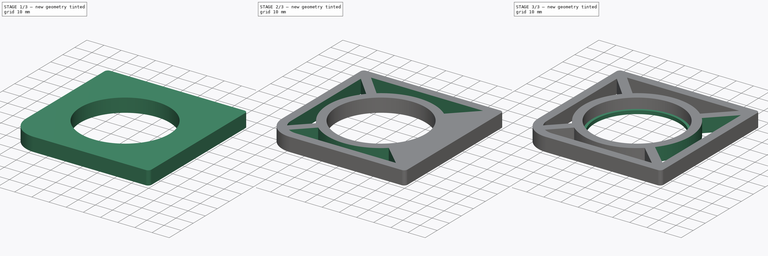
[diagram: build sequence overview — one tinted view per stage of 3, left to right]
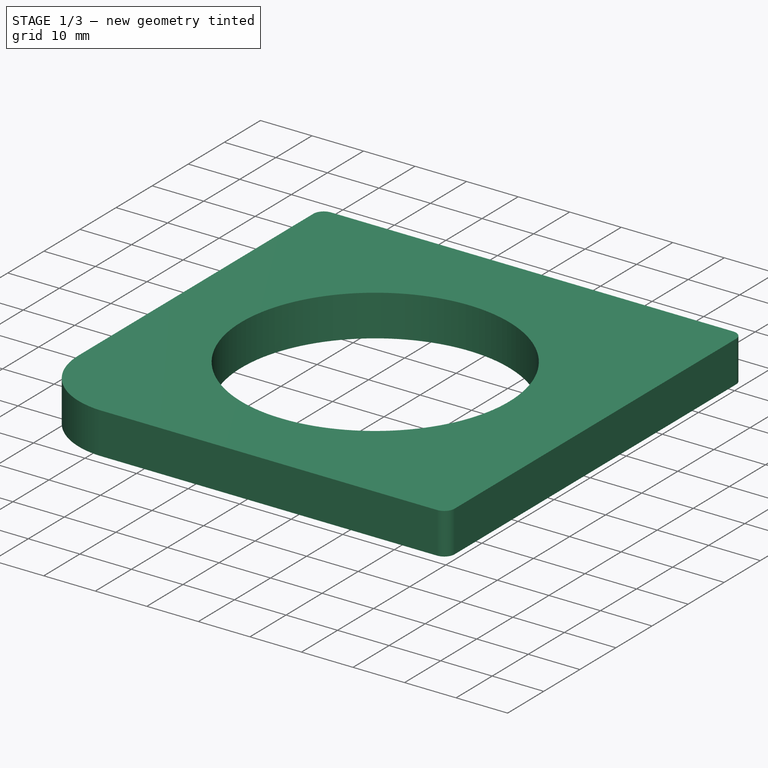
[diagram: stage 1 of 3 — iso view after this stage's code; geometry added in this stage tinted green]
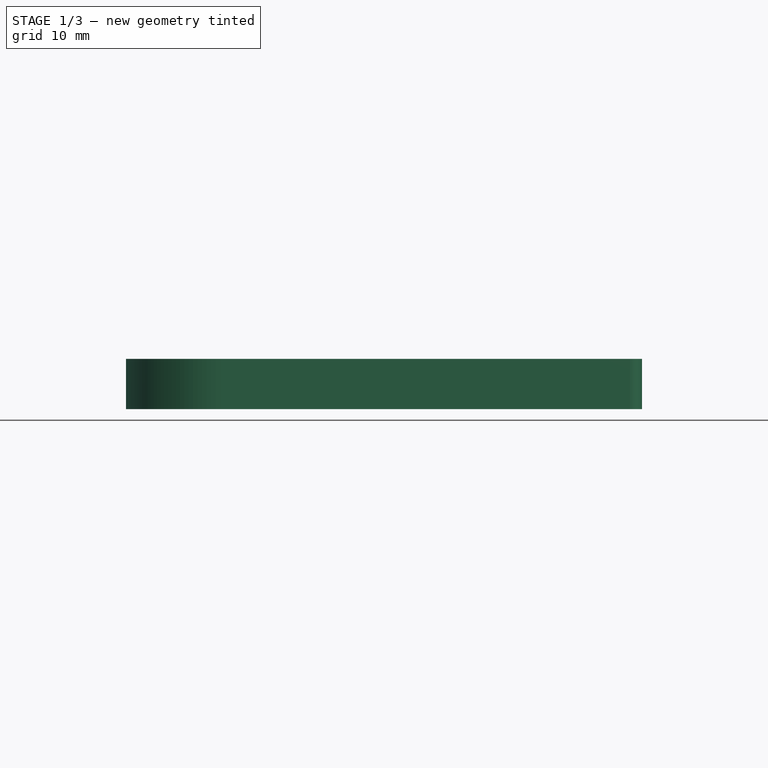
[diagram: stage 1 of 3 — front view after this stage's code; geometry added in this stage tinted green]
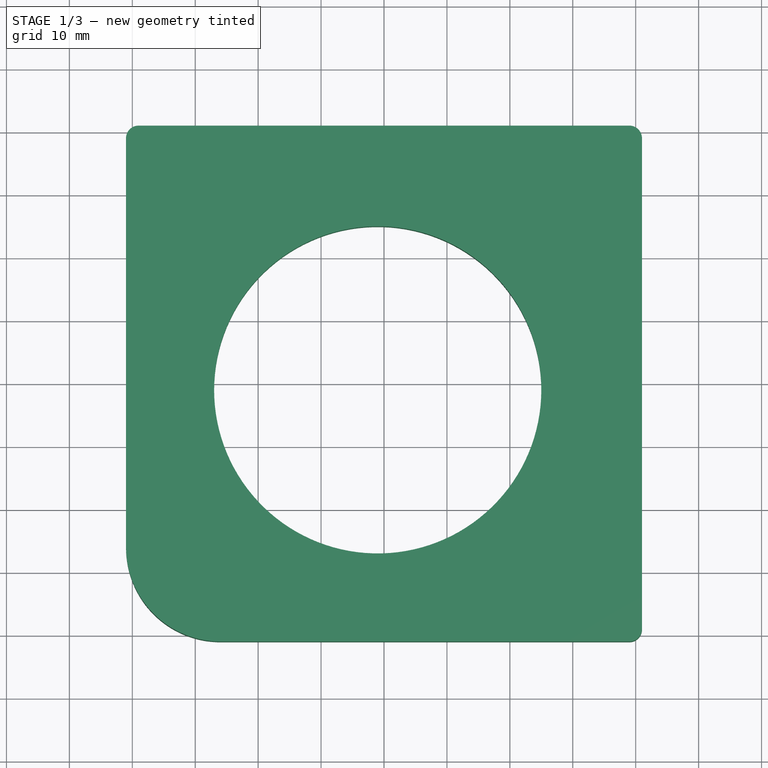
[diagram: stage 1 of 3 — top view after this stage's code; geometry added in this stage tinted green]
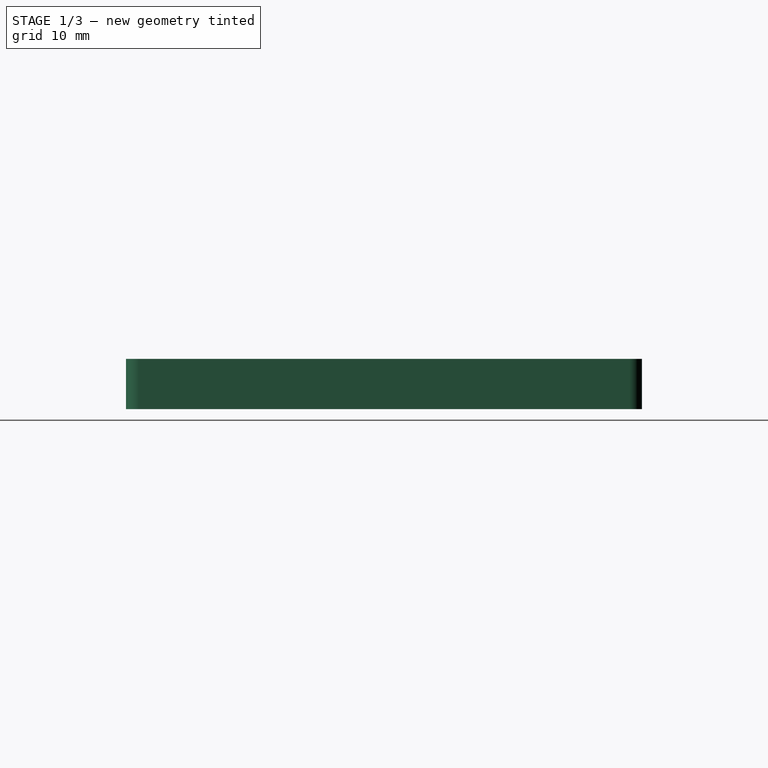
[diagram: stage 1 of 3 — right view after this stage's code; geometry added in this stage tinted green]
FCSTD DOCUMENT  (FreeCAD 1.0R39319 (Git))
Label: samla_bearing_holder
License: All rights reserved
LicenseURL: https://en.wikipedia.org/wiki/All_rights_reserved
objects: Sketcher::SketchObject×7, PartDesign::Pocket×5, PartDesign::Pad×2, Spreadsheet::Sheet×1, PartDesign::Plane×1, PartDesign::Body×1
note: 37 computed .brp shape members not serialized (recipe doc carries the construction recipe); baked Part::Feature solids carry a one-line shape summary decoded from their .brp

FEATURE [Spreadsheet::Sheet] Spreadsheet  label="settings"
  cells = A1='Foot Width; B1(FootWidth)=82; C1='Bearing X; D1(BearingX)=40; E1='Wall thickness; F1(WallThickness)=5; A2='Foot Depth; B2(FootDepth)=82; C2='Bearing Y; D2(BearingY)=40; A3='Foot Fillet; B3(FootFillet)=15; C3='Bearing Diameter; D3(BearingDiameter)=52; C4='Bearing lip size; D4(BearingLipSize)=3; A5='Foot corner fillets; B5(FootCornerFillet)=2; C5='Bearing depth; D5(BearingDepth)=6; A6='Foot Height; B6(FootHeight)=8
FEATURE [Sketcher::SketchObject] Sketch
  ArcFitTolerance = 1e-06
  AttachmentSupport = -> [XY_Plane]
  FullyConstrained = true
  MakeInternals = false
  MapMode = 5
  expr: Constraints[11] = Spreadsheet.FootFillet
  expr: Constraints[24] = Spreadsheet.FootCornerFillet
  expr: Constraints[25] = Spreadsheet.FootCornerFillet
  expr: Constraints[26] = Spreadsheet.FootCornerFillet
  expr: Constraints[5] = Spreadsheet.FootWidth
  expr: Constraints[6] = Spreadsheet.FootDepth
  sketch-geometry (12):
    g0: LineSegment StartX=-41 StartY=39 StartZ=0 EndX=-41 EndY=-26 EndZ=0
    g1: LineSegment StartX=-26 StartY=-41 StartZ=0 EndX=39 EndY=-41 EndZ=0
    g2: LineSegment StartX=41 StartY=-39 StartZ=0 EndX=41 EndY=39 EndZ=0
    g3: LineSegment StartX=39 StartY=41 StartZ=0 EndX=-39 EndY=41 EndZ=0
    g4: ArcOfCircle CenterX=-26 CenterY=-26 CenterZ=0 NormalX=0 NormalY=0 NormalZ=1 AngleXU=0 Radius=15 StartAngle=3.14159 EndAngle=4.71239
    g5: GeomPoint [constr] X=-41 Y=-41 Z=0
    g6: ArcOfCircle CenterX=-39 CenterY=39 CenterZ=0 NormalX=0 NormalY=0 NormalZ=1 AngleXU=0 Radius=2 StartAngle=1.5708 EndAngle=3.14159
    g7: GeomPoint [constr] X=-41 Y=41 Z=0
    g8: ArcOfCircle CenterX=39 CenterY=39 CenterZ=0 NormalX=0 NormalY=0 NormalZ=1 AngleXU=0 Radius=2 StartAngle=1.2e-15 EndAngle=1.5708
    g9: GeomPoint [constr] X=41 Y=41 Z=0
    g10: ArcOfCircle CenterX=39 CenterY=-39 CenterZ=0 NormalX=0 NormalY=0 NormalZ=1 AngleXU=0 Radius=2 StartAngle=4.71239 EndAngle=6.28319
    g11: GeomPoint [constr] X=41 Y=-41 Z=0
  constraints (27):
    c: Vertical(g0)
    c: Vertical(g2)
    c: Horizontal(g1)
    c: Horizontal(g3)
    c: Symmetric(g9,g5,g-1)
    c: DistanceX(g5,g11) = 82
    c: DistanceY(g11,g9) = 82
    c: PointOnObject(g5,g1)
    c: PointOnObject(g5,g0)
    c: Tangent(g1,g4) = -1.5708
    c: Tangent(g0,g4) = -1.5708
    c: DistanceY(g1,g4) = 15
    c: PointOnObject(g7,g3)
    c: PointOnObject(g7,g0)
    c: Tangent(g3,g6) = -1.5708
    c: Tangent(g0,g6) = -1.5708
    c: PointOnObject(g9,g2)
    c: PointOnObject(g9,g3)
    c: Tangent(g2,g8) = -1.5708
    c: Tangent(g3,g8) = -1.5708
    c: PointOnObject(g11,g1)
    c: PointOnObject(g11,g2)
    c: Tangent(g1,g10) = -1.5708
    c: Tangent(g2,g10) = -1.5708
    c: DistanceY(g6,g3) = 2
    c: DistanceY(g8,g3) = 2
    c: DistanceY(g1,g10) = 2
FEATURE [PartDesign::Pad] Pad  label="main body"
  Direction = (0,0,1)
  Length = 8
  Length2 = 10
  Profile = -> Sketch
  ReferenceAxis = -> Sketch [N_Axis]
  Refine = true
  Suppressed = false
  Type = 0
  expr: Length = Spreadsheet.FootHeight
FEATURE [PartDesign::Plane] DatumPlane  label="TopPlane"
  AttachmentOffset = pos=(0,0,8) rot=(0,0,1;0rad)
  AttachmentSupport = -> [XY_Plane]
  Length = 98.4
  MapMode = 2
  Placement = pos=(0,0,8) rot=(0,0,1;0rad)
  ResizeMode = 0
  Width = 98.4
  expr: .AttachmentOffset.Base.z = Spreadsheet.FootHeight
FEATURE [Sketcher::SketchObject] Sketch001
  ArcFitTolerance = 1e-06
  AttachmentSupport = -> [DatumPlane]
  FullyConstrained = true
  MakeInternals = false
  MapMode = 5
  Placement = pos=(0,0,8) rot=(0,0,1;0rad)
  expr: Constraints[10] = Spreadsheet.BearingY
  expr: Constraints[11] = Spreadsheet.FootDepth
  expr: Constraints[12] = Spreadsheet.FootWidth
  expr: Constraints[17] = Spreadsheet.FootFillet
  expr: Constraints[8] = Spreadsheet.BearingDiameter
  expr: Constraints[9] = Spreadsheet.BearingX
  sketch-geometry (7):
    g0: LineSegment [constr] StartX=-41 StartY=41 StartZ=0 EndX=-41 EndY=-26 EndZ=0
    g1: LineSegment [constr] StartX=-26 StartY=-41 StartZ=0 EndX=41 EndY=-41 EndZ=0
    g2: LineSegment [constr] StartX=41 StartY=-41 StartZ=0 EndX=41 EndY=41 EndZ=0
    g3: LineSegment [constr] StartX=41 StartY=41 StartZ=0 EndX=-41 EndY=41 EndZ=0
    g4: Circle CenterX=-1 CenterY=-1 CenterZ=0 NormalX=0 NormalY=0 NormalZ=1 AngleXU=0 Radius=26
    g5: ArcOfCircle [constr] CenterX=-26 CenterY=-26 CenterZ=0 NormalX=0 NormalY=0 NormalZ=1 AngleXU=0 Radius=15 StartAngle=3.14159 EndAngle=4.71239
    g6: GeomPoint [constr] X=-41 Y=-41 Z=0
  constraints (18):
    c: Coincident(g1,g2)
    c: Coincident(g2,g3)
    c: Coincident(g3,g0)
    c: Vertical(g0)
    c: Vertical(g2)
    c: Horizontal(g1)
    c: Horizontal(g3)
    c: Symmetric(g2,g6,g-1)
    c: Diameter(g4) = 52
    c: DistanceX(g6,g4) = 40
    c: DistanceY(g6,g4) = 40
    c: DistanceY(g6,g0) = 82
    c: DistanceX(g6,g1) = 82
    c: PointOnObject(g6,g1)
    c: PointOnObject(g6,g0)
    c: Tangent(g1,g5) = -1.5708
    c: Tangent(g0,g5) = -1.5708
    c: DistanceX(g0,g5) = 15
FEATURE [PartDesign::Pocket] Pocket  label="BearingHole"
  BaseFeature = -> Pad
  Direction = (0,0,-1)
  Length = 5
  Length2 = 5
  Profile = -> Sketch001
  ReferenceAxis = -> Sketch001 [N_Axis]
  Refine = true
  Suppressed = false
  Type = 1
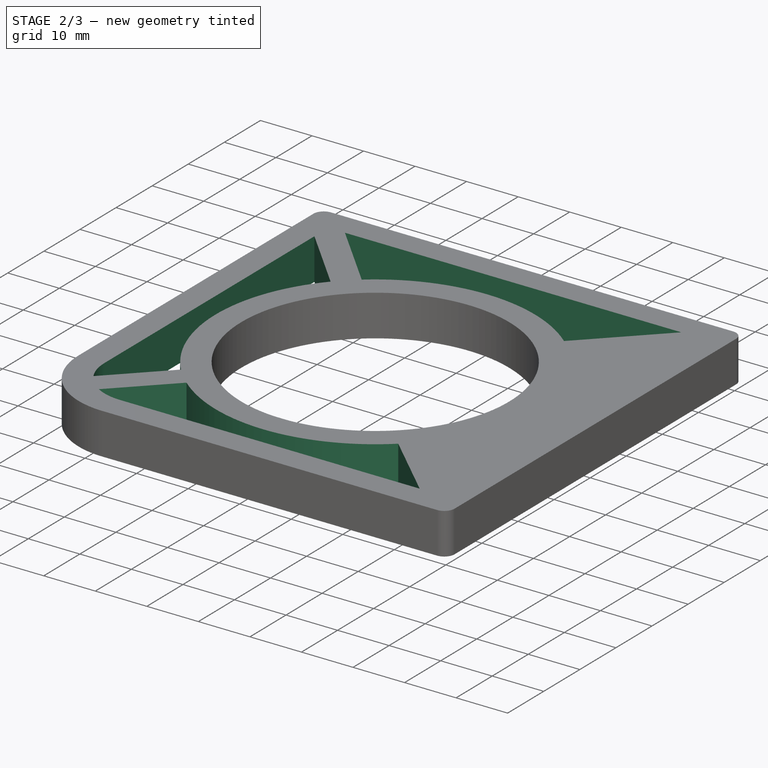
[diagram: stage 2 of 3 — iso view after this stage's code; geometry added in this stage tinted green]
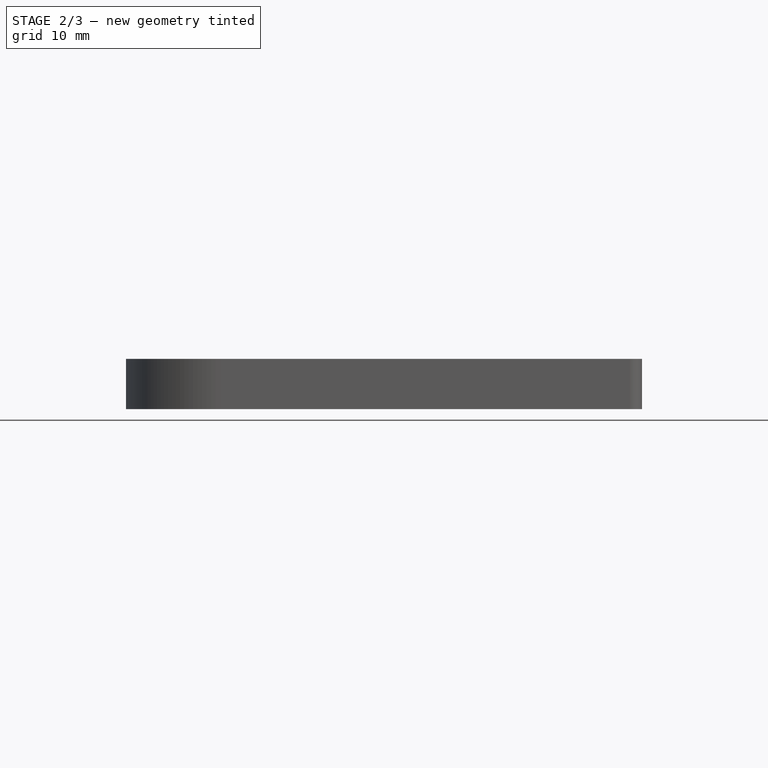
[diagram: stage 2 of 3 — front view after this stage's code; geometry added in this stage tinted green]
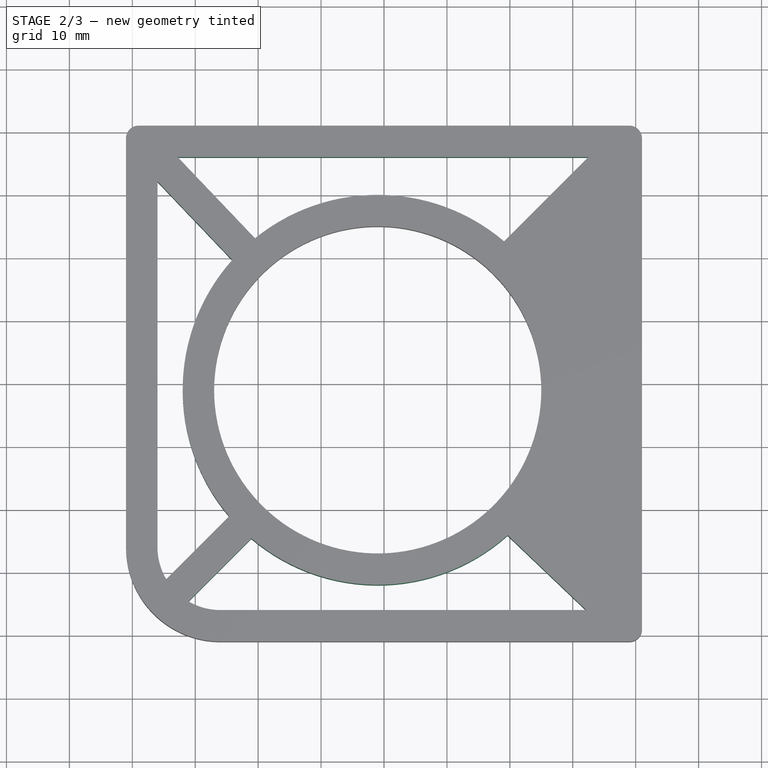
[diagram: stage 2 of 3 — top view after this stage's code; geometry added in this stage tinted green]
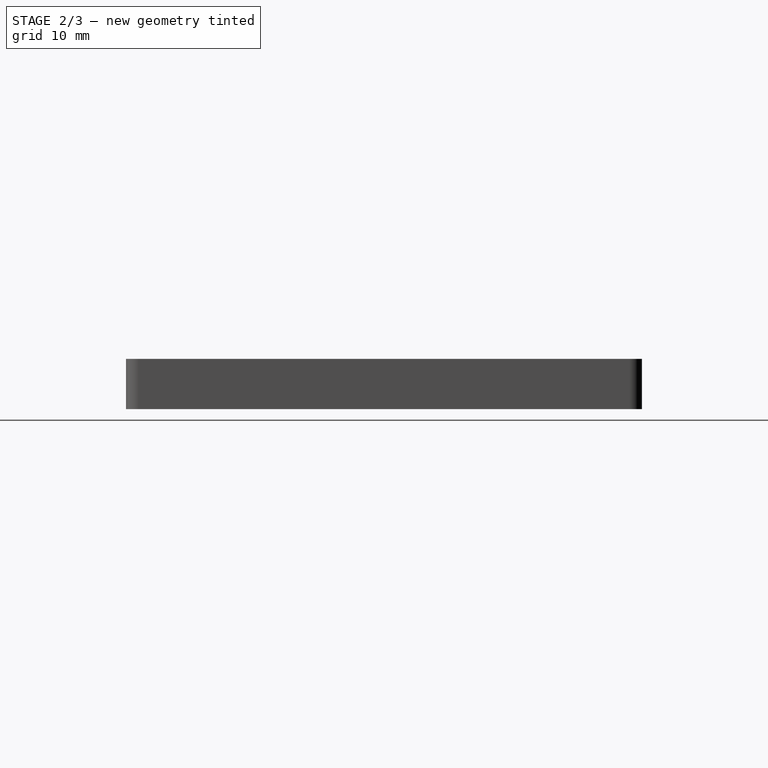
[diagram: stage 2 of 3 — right view after this stage's code; geometry added in this stage tinted green]
FEATURE [Sketcher::SketchObject] Sketch002
  ArcFitTolerance = 1e-06
  AttachmentSupport = -> [DatumPlane]
  ExternalGeometry = -> [Pocket]
  FullyConstrained = true
  MakeInternals = false
  MapMode = 5
  Placement = pos=(0,0,8) rot=(0,0,1;0rad)
  expr: Constraints[2] = Spreadsheet.BearingDiameter + Spreadsheet.WallThickness * 2
  expr: Constraints[44] = Spreadsheet.WallThickness / 2
  expr: Constraints[48] = Spreadsheet.WallThickness / 2
  expr: Constraints[5] = Spreadsheet.WallThickness
  sketch-geometry (18):
    g0: LineSegment [constr] StartX=-1 StartY=-1 StartZ=0 EndX=-41 EndY=-41 EndZ=0
    g1: LineSegment [constr] StartX=-1 StartY=-1 StartZ=0 EndX=41 EndY=-41 EndZ=0
    g2: Circle [constr] CenterX=-1 CenterY=-1 CenterZ=0 NormalX=0 NormalY=0 NormalZ=1 AngleXU=0 Radius=31
    g3: LineSegment [constr] StartX=35.75 StartY=-36 StartZ=0 EndX=-26 EndY=-36 EndZ=0
    g4: LineSegment [constr] StartX=0.810883 StartY=-2.72465 StartZ=0 EndX=-39.1891 EndY=-42.7247 EndZ=0
    g5: ArcOfCircle [constr] CenterX=-26 CenterY=-26 CenterZ=0 NormalX=0 NormalY=0 NormalZ=1 AngleXU=0 Radius=10 StartAngle=3.92699 EndAngle=4.71239
    g6: LineSegment [constr] StartX=-2.76829 StartY=-2.76829 StartZ=0 EndX=39.2317 EndY=-42.7683 EndZ=0
    g7: GeomPoint [constr] X=-21.0811 Y=-24.6167 Z=0
    g8: GeomPoint [constr] X=19.651 Y=-24.12 Z=0
    g9: GeomPoint [constr] X=32.125 Y=-36 Z=0
    g10: GeomPoint [constr] X=-31.0788 Y=-34.6143 Z=0
    g11: LineSegment StartX=-26 StartY=-36 StartZ=0 EndX=32.125 EndY=-36 EndZ=0
    g12: LineSegment StartX=32.125 StartY=-36 StartZ=0 EndX=19.651 EndY=-24.12 EndZ=0
    g13: ArcOfCircle CenterX=-1 CenterY=-1 CenterZ=0 NormalX=0 NormalY=0 NormalZ=1 AngleXU=0 Radius=31 StartAngle=4.00772 EndAngle=5.44144
    g14: LineSegment StartX=-21.0811 StartY=-24.6167 StartZ=0 EndX=-31.0788 EndY=-34.6143 EndZ=0
    g15: ArcOfCircle CenterX=-26 CenterY=-26 CenterZ=0 NormalX=0 NormalY=0 NormalZ=1 AngleXU=0 Radius=10 StartAngle=4.17967 EndAngle=4.71239
    g16: LineSegment [constr] StartX=-22.9203 StartY=-22.9203 StartZ=0 EndX=-21.1525 EndY=-24.6881 EndZ=0
    g17: LineSegment [constr] StartX=19.7241 StartY=-24.1897 StartZ=0 EndX=21.4483 EndY=-22.3793 EndZ=0
  constraints (49):
    c: Coincident(g1,g0)
    c: Coincident(g2,g0)
    c: Diameter(g2) = 62
    c: Vertical(g3,g-4)
    c: Coincident(g0,g-3)
    c: DistanceY(g-4,g3) = 5
    c: PointOnObject(g4,g1)
    c: Parallel(g4,g0)
    c: Equal(g4,g0)
    c: Coincident(g5,g3)
    c: PointOnObject(g5,g0)
    c: Coincident(g5,g-4)
    c: PointOnObject(g6,g0)
    c: Parallel(g6,g1)
    c: Equal(g6,g1)
    c: PointOnObject(g7,g2)
    c: PointOnObject(g7,g4)
    c: PointOnObject(g10,g4)
    c: PointOnObject(g9,g6)
    c: PointOnObject(g9,g3)
    c: PointOnObject(g8,g6)
    c: Coincident(g11,g9)
    c: Coincident(g11,g3)
    c: Coincident(g12,g8)
    c: Horizontal(g3)
    c: Coincident(g12,g9)
    c: Coincident(g13,g8)
    c: Coincident(g13,g7)
    c: Coincident(g13,g0)
    c: Coincident(g14,g7)
    c: Coincident(g14,g10)
    c: Coincident(g15,g5)
    c: Coincident(g15,g3)
    c: Coincident(g15,g10)
    c: Vertical(g-4,g0)
    c: Horizontal(g0,g-4)
    c: PointOnObject(g3,g1)
    c: Horizontal(g1,g-5)
    c: Vertical(g1,g-5)
    c: PointOnObject(g16,g0)
    c: PointOnObject(g16,g4)
    c: PointOnObject(g17,g6)
    c: PointOnObject(g17,g1)
    c: Perpendicular(g4,g16)
    c: Distance(g16,g16) = 2.5
    c: PointOnObject(g16,g2)
    c: PointOnObject(g17,g2)
    c: Perpendicular(g1,g17)
    c: Distance(g17,g17) = 2.5
FEATURE [PartDesign::Pocket] Pocket001  label="BottomHole"
  BaseFeature = -> Pocket
  Direction = (0,0,-1)
  Length = 5
  Length2 = 5
  Profile = -> Sketch002
  ReferenceAxis = -> Sketch002 [N_Axis]
  Refine = true
  Suppressed = false
  Type = 1
FEATURE [Sketcher::SketchObject] Sketch003
  ArcFitTolerance = 1e-06
  AttachmentSupport = -> [DatumPlane]
  ExternalGeometry = -> [Pocket001]
  FullyConstrained = true
  MakeInternals = false
  MapMode = 5
  Placement = pos=(0,0,8) rot=(0,0,1;0rad)
  expr: Constraints[18] = Spreadsheet.WallThickness / 2
  expr: Constraints[19] = Spreadsheet.WallThickness / 2
  expr: Constraints[23] = Spreadsheet.WallThickness
  expr: Constraints[31] = Spreadsheet.BearingDiameter + Spreadsheet.WallThickness * 2
  sketch-geometry (13):
    g0: LineSegment [constr] StartX=-1 StartY=-1 StartZ=0 EndX=-41 EndY=41 EndZ=0
    g1: LineSegment [constr] StartX=-1 StartY=-1 StartZ=0 EndX=-41 EndY=-41 EndZ=0
    g2: LineSegment [constr] StartX=-2.72465 StartY=0.810883 StartZ=0 EndX=-42.7247 EndY=-39.1891 EndZ=0
    g3: LineSegment [constr] StartX=-2.76829 StartY=-2.76829 StartZ=0 EndX=-42.7683 EndY=39.2317 EndZ=0
    g4: LineSegment [constr] StartX=16.931 StartY=-19.8276 StartZ=0 EndX=15.1207 EndY=-21.5517 EndZ=0
    g5: LineSegment [constr] StartX=-21.1525 StartY=-17.617 StartZ=0 EndX=-19.3848 EndY=-19.3848 EndZ=0
    g6: LineSegment [constr] StartX=-36 StartY=-26 StartZ=0 EndX=-36 EndY=32.125 EndZ=0
    g7: ArcOfCircle CenterX=-26 CenterY=-26 CenterZ=0 NormalX=0 NormalY=0 NormalZ=1 AngleXU=0 Radius=10 StartAngle=3.14159 EndAngle=3.67431
    g8: LineSegment StartX=-36 StartY=32.125 StartZ=0 EndX=-36 EndY=-26 EndZ=0
    g9: ArcOfCircle CenterX=-1 CenterY=-1 CenterZ=0 NormalX=0 NormalY=0 NormalZ=1 AngleXU=0 Radius=31 StartAngle=2.41254 EndAngle=3.84626
    g10: Circle [constr] CenterX=-1 CenterY=-1 CenterZ=0 NormalX=0 NormalY=0 NormalZ=1 AngleXU=0 Radius=31
    g11: LineSegment StartX=-34.6143 StartY=-31.0788 StartZ=0 EndX=-24.6167 EndY=-21.0811 EndZ=0
    g12: LineSegment StartX=-36 StartY=32.125 StartZ=0 EndX=-24.12 EndY=19.651 EndZ=0
  constraints (41):
    c: Coincident(g0,g-3)
    c: Coincident(g1,g0)
    c: Vertical(g-4,g1)
    c: Horizontal(g1,g-4)
    c: Vertical(g-5,g0)
    c: Horizontal(g0,g-5)
    c: Parallel(g3,g0)
    c: Equal(g0,g3)
    c: Parallel(g2,g1)
    c: Equal(g2,g1)
    c: PointOnObject(g3,g1)
    c: PointOnObject(g2,g0)
    c: PointOnObject(g4,g0)
    c: PointOnObject(g4,g3)
    c: PointOnObject(g5,g2)
    c: PointOnObject(g5,g1)
    c: Perpendicular(g1,g5)
    c: Perpendicular(g0,g4)
    c: Distance(g4,g4) = 2.5
    c: Distance(g5,g5) = 2.5
    c: PointOnObject(g5,g-3)
    c: Vertical(g6)
    c: Horizontal(g6,g-4)
    c: DistanceX(g-4,g6) = 5
    c: PointOnObject(g6,g3)
    c: Coincident(g7,g6)
    c: PointOnObject(g7,g2)
    c: Coincident(g7,g-4)
    c: Coincident(g8,g6)
    c: Coincident(g8,g6)
    c: Coincident(g10,g0)
    c: Diameter(g10) = 62
    c: PointOnObject(g9,g3)
    c: PointOnObject(g9,g10)
    c: PointOnObject(g9,g2)
    c: Coincident(g9,g0)
    c: Coincident(g11,g7)
    c: Coincident(g11,g9)
    c: PointOnObject(g4,g-3)
    c: Coincident(g12,g6)
    c: Coincident(g12,g9)
FEATURE [PartDesign::Pocket] Pocket002  label="LeftHole"
  BaseFeature = -> Pocket001
  Direction = (0,0,-1)
  Length = 5
  Length2 = 5
  Profile = -> Sketch003
  ReferenceAxis = -> Sketch003 [N_Axis]
  Refine = true
  Suppressed = false
  Type = 1
FEATURE [Sketcher::SketchObject] Sketch004
  ArcFitTolerance = 1e-06
  AttachmentSupport = -> [DatumPlane]
  ExternalGeometry = -> [Pocket002]
  FullyConstrained = true
  MakeInternals = false
  MapMode = 5
  Placement = pos=(0,0,8) rot=(0,0,1;0rad)
  expr: Constraints[18] = Spreadsheet.WallThickness / 2
  expr: Constraints[25] = Spreadsheet.WallThickness
  expr: Constraints[7] = Spreadsheet.BearingDiameter + Spreadsheet.WallThickness * 2
  sketch-geometry (13):
    g0: LineSegment [constr] StartX=-1 StartY=-1 StartZ=0 EndX=-41 EndY=41 EndZ=0
    g1: LineSegment [constr] StartX=-1 StartY=-1 StartZ=0 EndX=41 EndY=41 EndZ=0
    g2: Circle [constr] CenterX=-1 CenterY=-1 CenterZ=0 NormalX=0 NormalY=0 NormalZ=1 AngleXU=0 Radius=31
    g3: LineSegment [constr] StartX=0.768293 StartY=0.768293 StartZ=0 EndX=-39.2317 EndY=42.7683 EndZ=0
    g4: LineSegment [constr] StartX=-2.72465 StartY=0.810883 StartZ=0 EndX=39.2753 EndY=42.8109 EndZ=0
    g5: LineSegment [constr] StartX=-18.848 StartY=17.7403 StartZ=0 EndX=-17.0376 EndY=19.4645 EndZ=0
    g6: LineSegment [constr] StartX=17.2996 StartY=17.2996 StartZ=0 EndX=15.5318 EndY=19.0674 EndZ=0
    g7: LineSegment StartX=-32.7857 StartY=36 StartZ=0 EndX=32.4645 EndY=36 EndZ=0
    g8: GeomPoint X=-20.4993 Y=23.0993 Z=0
    g9: GeomPoint X=19.0811 Y=22.6167 Z=0
    g10: LineSegment StartX=-20.4993 StartY=23.0993 StartZ=0 EndX=-32.7857 EndY=36 EndZ=0
    g11: ArcOfCircle CenterX=-1 CenterY=-1 CenterZ=0 NormalX=0 NormalY=0 NormalZ=1 AngleXU=0 Radius=31 StartAngle=0.866131 EndAngle=2.25108
    g12: LineSegment StartX=32.4645 StartY=36 StartZ=0 EndX=19.0811 EndY=22.6167 EndZ=0
  constraints (38):
    c: Coincident(g0,g-3)
    c: Coincident(g1,g0)
    c: Horizontal(g1,g-5)
    c: Vertical(g1,g-5)
    c: Horizontal(g0,g-4)
    c: Vertical(g0,g-4)
    c: Coincident(g2,g0)
    c: Diameter(g2) = 62
    c: PointOnObject(g3,g1)
    c: PointOnObject(g4,g0)
    c: PointOnObject(g5,g3)
    c: PointOnObject(g6,g4)
    c: Perpendicular(g0,g5)
    c: Perpendicular(g1,g6)
    c: Parallel(g4,g1)
    c: Parallel(g3,g0)
    c: Equal(g3,g0)
    c: Equal(g4,g1)
    c: Distance(g5,g5) = 2.5
    c: Equal(g5,g6)
    c: PointOnObject(g5,g-3)
    c: PointOnObject(g5,g0)
    c: PointOnObject(g6,g1)
    c: PointOnObject(g6,g-3)
    c: Horizontal(g7)
    c: DistanceY(g7,g1) = 5
    c: PointOnObject(g7,g4)
    c: PointOnObject(g7,g3)
    c: PointOnObject(g8,g2)
    c: PointOnObject(g8,g3)
    c: PointOnObject(g9,g4)
    c: Coincident(g10,g8)
    c: Coincident(g10,g7)
    c: Coincident(g11,g0)
    c: Coincident(g11,g8)
    c: Coincident(g11,g9)
    c: Coincident(g12,g7)
    c: Coincident(g12,g9)
FEATURE [PartDesign::Pocket] Pocket003  label="TopHole"
  BaseFeature = -> Pocket002
  Direction = (0,0,-1)
  Length = 5
  Length2 = 5
  Profile = -> Sketch004
  ReferenceAxis = -> Sketch004 [N_Axis]
  Refine = true
  Suppressed = false
  Type = 1
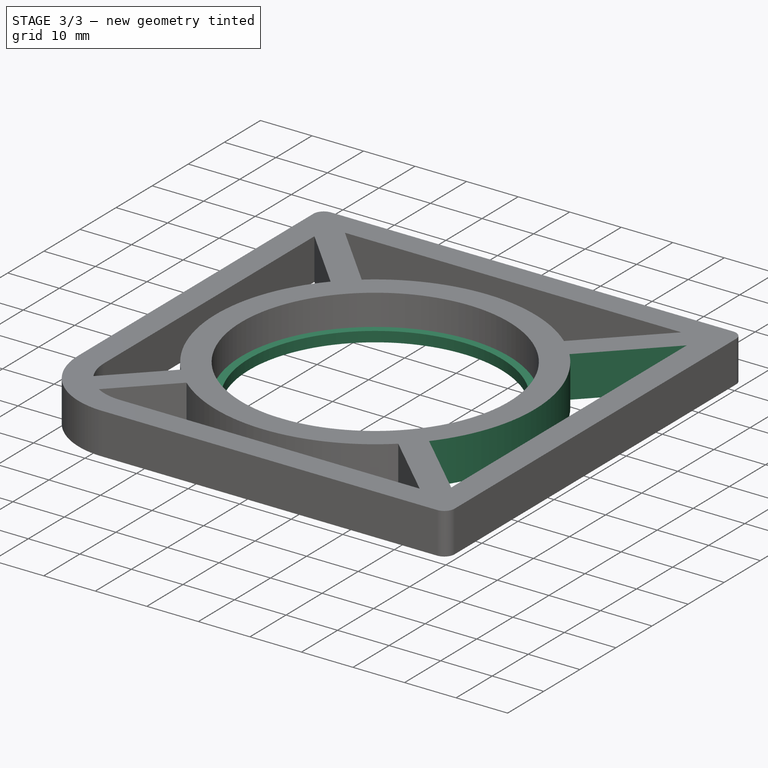
[diagram: stage 3 of 3 — iso view after this stage's code; geometry added in this stage tinted green]
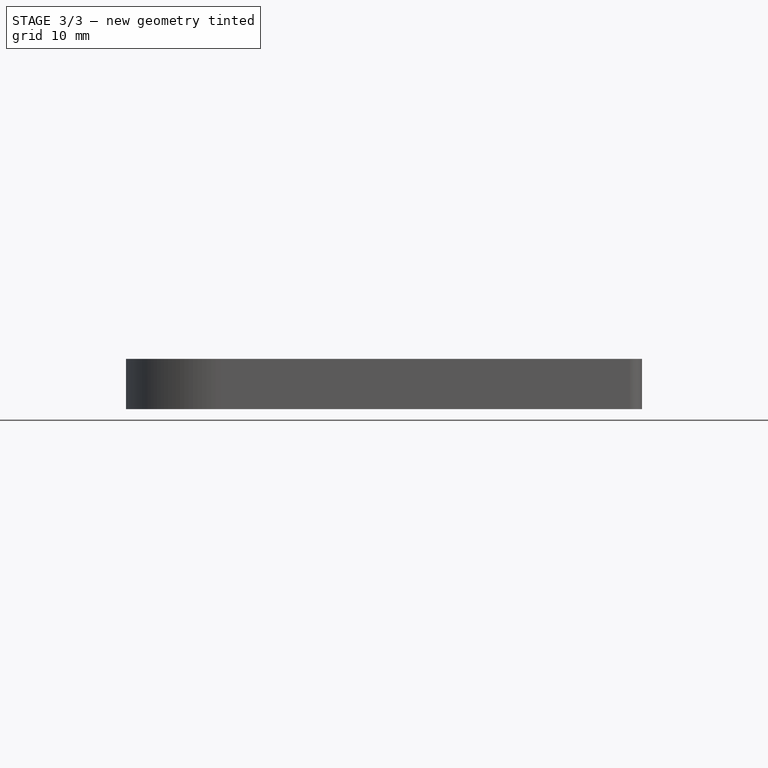
[diagram: stage 3 of 3 — front view after this stage's code; geometry added in this stage tinted green]
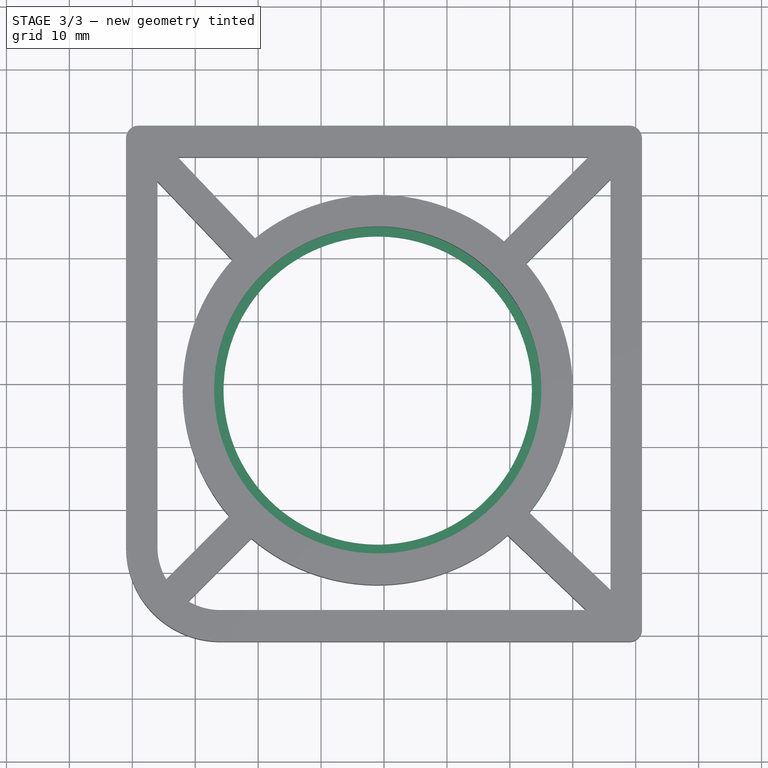
[diagram: stage 3 of 3 — top view after this stage's code; geometry added in this stage tinted green]
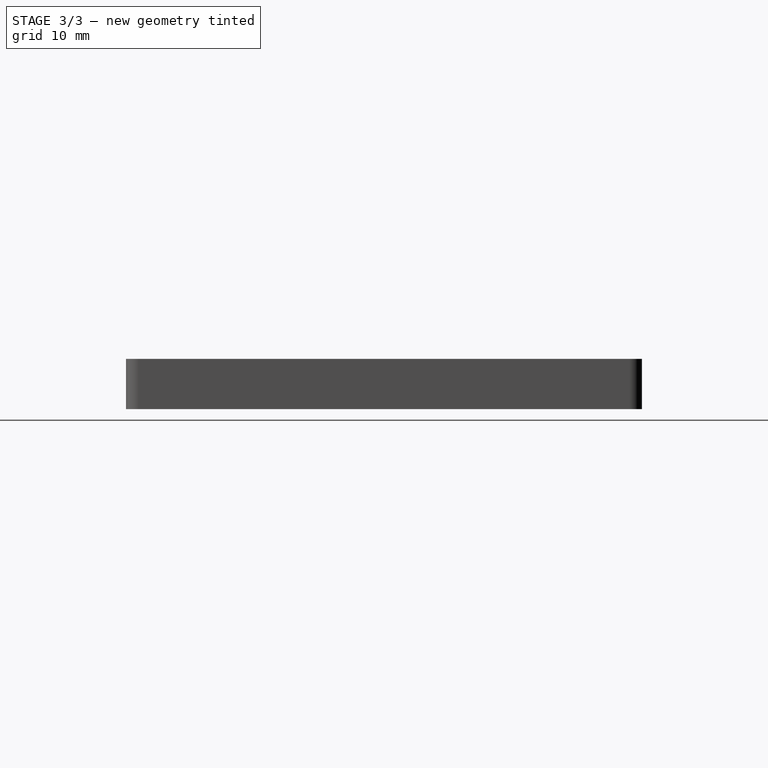
[diagram: stage 3 of 3 — right view after this stage's code; geometry added in this stage tinted green]
FEATURE [Sketcher::SketchObject] Sketch005
  ArcFitTolerance = 1e-06
  AttachmentSupport = -> [DatumPlane]
  ExternalGeometry = -> [Pocket003]
  FullyConstrained = true
  MakeInternals = false
  MapMode = 5
  Placement = pos=(0,0,8) rot=(0,0,1;0rad)
  expr: Constraints[18] = Spreadsheet.WallThickness / 2
  expr: Constraints[19] = Spreadsheet.WallThickness / 2
  expr: Constraints[21] = Spreadsheet.BearingDiameter + Spreadsheet.WallThickness * 2
  expr: Constraints[25] = Spreadsheet.WallThickness
  sketch-geometry (13):
    g0: LineSegment [constr] StartX=-1 StartY=-1 StartZ=0 EndX=41 EndY=41 EndZ=0
    g1: LineSegment [constr] StartX=-1 StartY=-1 StartZ=0 EndX=41 EndY=-41 EndZ=0
    g2: LineSegment [constr] StartX=0.768293 StartY=0.768293 StartZ=0 EndX=42.7683 EndY=-39.2317 EndZ=0
    g3: LineSegment [constr] StartX=0.810883 StartY=-2.72465 StartZ=0 EndX=42.8109 EndY=39.2753 EndZ=0
    g4: LineSegment [constr] StartX=21.3752 StartY=-22.3097 StartZ=0 EndX=23.0993 EndY=-20.4993 EndZ=0
    g5: LineSegment [constr] StartX=20.8489 StartY=20.8489 StartZ=0 EndX=22.6167 EndY=19.0811 EndZ=0
    g6: Circle [constr] CenterX=-1 CenterY=-1 CenterZ=0 NormalX=0 NormalY=0 NormalZ=1 AngleXU=0 Radius=31
    g7: LineSegment StartX=36 StartY=32.4645 StartZ=0 EndX=36 EndY=-32.7857 EndZ=0
    g8: GeomPoint X=22.6167 Y=19.0811 Z=0
    g9: GeomPoint X=23.0993 Y=-20.4993 Z=0
    g10: LineSegment StartX=36 StartY=32.4645 StartZ=0 EndX=22.6167 EndY=19.0811 EndZ=0
    g11: LineSegment StartX=36 StartY=-32.7857 StartZ=0 EndX=23.0993 EndY=-20.4993 EndZ=0
    g12: ArcOfCircle CenterX=-1 CenterY=-1 CenterZ=0 NormalX=0 NormalY=0 NormalZ=1 AngleXU=0 Radius=31 StartAngle=5.60291 EndAngle=6.98785
  constraints (38):
    c: Coincident(g1,g-3)
    c: Coincident(g0,g1)
    c: Vertical(g0,g-4)
    c: Horizontal(g-4,g0)
    c: Vertical(g1,g-5)
    c: Horizontal(g1,g-5)
    c: Equal(g0,g3)
    c: Equal(g2,g1)
    c: Parallel(g3,g0)
    c: Parallel(g2,g1)
    c: PointOnObject(g3,g1)
    c: PointOnObject(g2,g0)
    c: PointOnObject(g5,g0)
    c: Perpendicular(g0,g5)
    c: PointOnObject(g4,g1)
    c: Perpendicular(g1,g4)
    c: PointOnObject(g4,g2)
    c: PointOnObject(g5,g3)
    c: Distance(g5) = 2.5
    c: Distance(g4) = 2.5
    c: Coincident(g6,g0)
    c: Diameter(g6) = 62
    c: Vertical(g7)
    c: PointOnObject(g7,g3)
    c: PointOnObject(g7,g2)
    c: DistanceX(g7,g-5) = 5
    c: PointOnObject(g8,g3)
    c: PointOnObject(g8,g6)
    c: PointOnObject(g9,g2)
    c: Coincident(g10,g7)
    c: Coincident(g10,g8)
    c: Coincident(g11,g7)
    c: Coincident(g11,g9)
    c: Coincident(g12,g0)
    c: Coincident(g12,g9)
    c: Coincident(g12,g8)
    c: PointOnObject(g5,g6)
    c: PointOnObject(g4,g6)
FEATURE [PartDesign::Pocket] Pocket004  label="RightHole"
  BaseFeature = -> Pocket003
  Direction = (0,0,-1)
  Length = 5
  Length2 = 5
  Profile = -> Sketch005
  ReferenceAxis = -> Sketch005 [N_Axis]
  Refine = true
  Suppressed = false
  Type = 1
FEATURE [Sketcher::SketchObject] Sketch006
  ArcFitTolerance = 1e-06
  AttachmentSupport = -> [XY_Plane]
  ExternalGeometry = -> [Pocket004]
  FullyConstrained = true
  MakeInternals = false
  MapMode = 5
  expr: Constraints[0] = Spreadsheet.BearingDiameter
  expr: Constraints[1] = Spreadsheet.BearingDiameter - Spreadsheet.BearingLipSize
  sketch-geometry (2):
    g0: Circle CenterX=-1 CenterY=-1 CenterZ=0 NormalX=0 NormalY=0 NormalZ=1 AngleXU=0 Radius=26
    g1: Circle CenterX=-1 CenterY=-1 CenterZ=0 NormalX=0 NormalY=0 NormalZ=1 AngleXU=0 Radius=24.5
  constraints (4):
    c: Diameter(g0) = 52
    c: Diameter(g1) = 49
    c: Coincident(g1,g-3)
    c: Coincident(g0,g1)
FEATURE [PartDesign::Pad] Pad001  label="BearingLip"
  BaseFeature = -> Pocket004
  Direction = (0,0,1)
  Length = 2
  Length2 = 10
  Profile = -> Sketch006
  ReferenceAxis = -> Sketch006 [N_Axis]
  Refine = true
  Suppressed = false
  Type = 0
  expr: Length = Spreadsheet.FootHeight - Spreadsheet.BearingDepth
FEATURE [PartDesign::Body] Body
  AllowCompound = false
  Group = -> [Sketch,Pad,DatumPlane,Sketch001,Pocket,Sketch002,Pocket001,Sketch003,Pocket002,Sketch004,Pocket003,Sketch005,Pocket004,Sketch006,Pad001]
  Origin = -> Origin
  Tip = -> Pad001
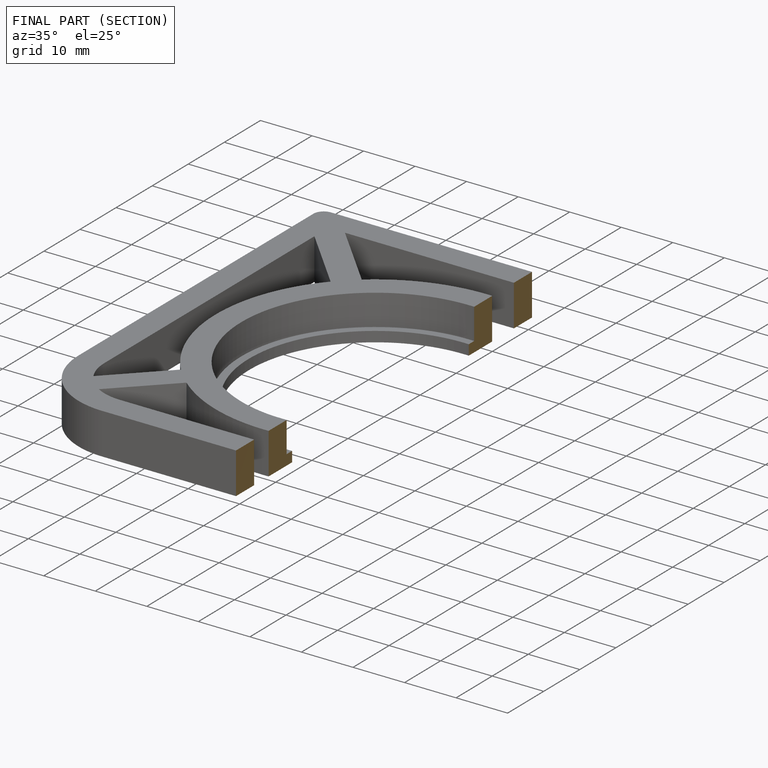
[diagram: finished part — half-section view (interior)]
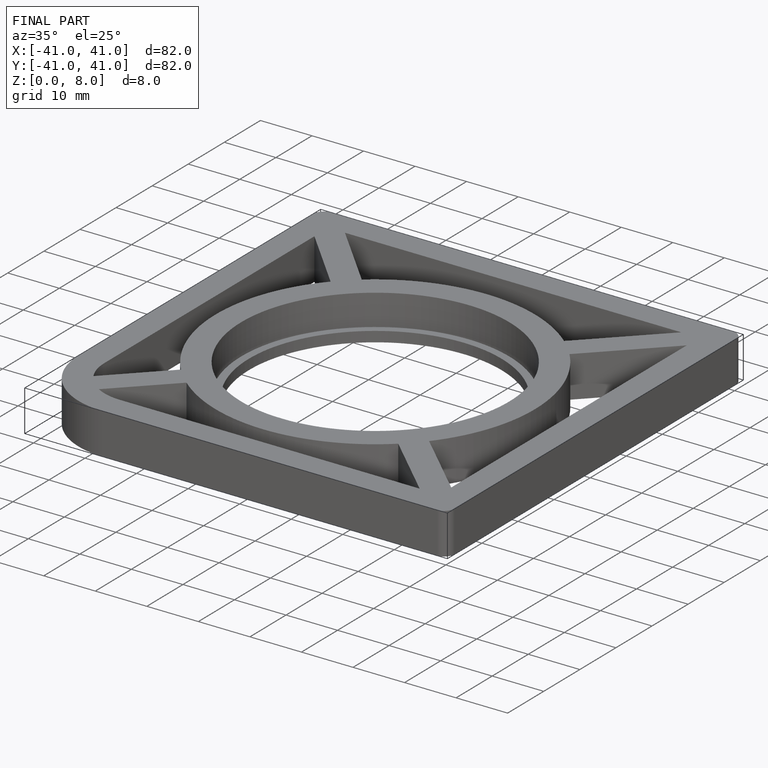
[diagram: finished part — iso view with bounding-box wireframe]
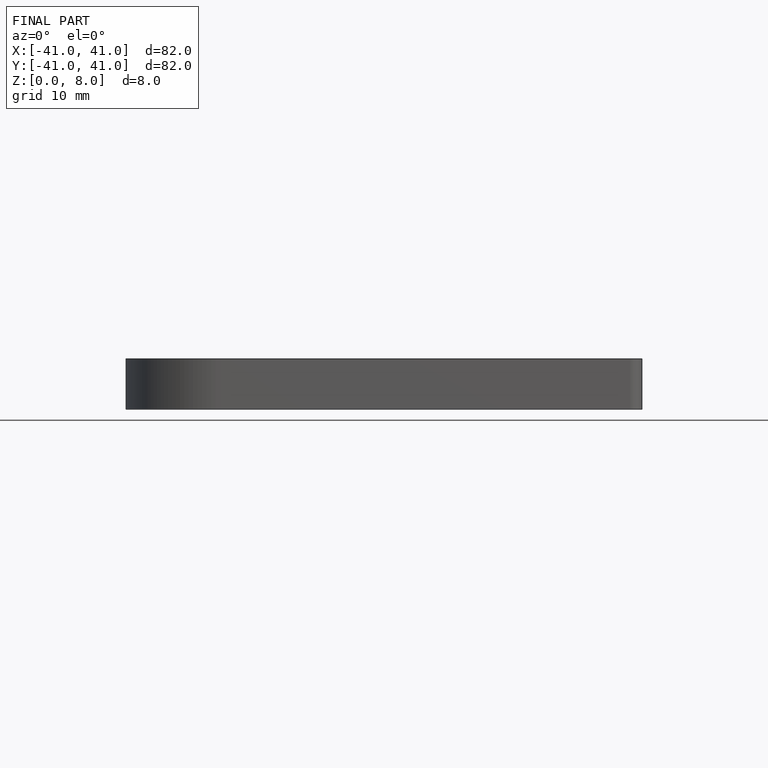
[diagram: finished part — front view with bounding-box wireframe]
